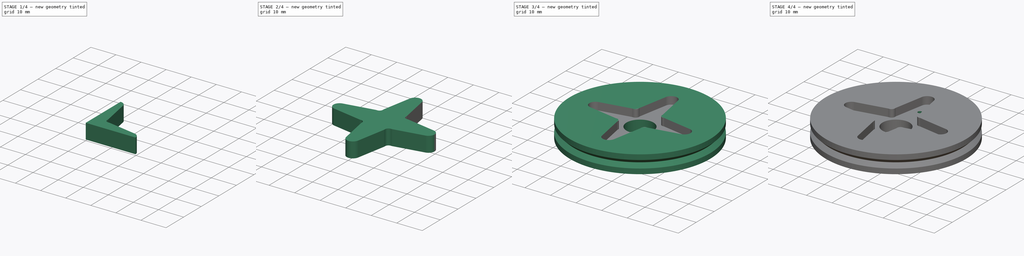
[diagram: build sequence overview — one tinted view per stage of 4, left to right]
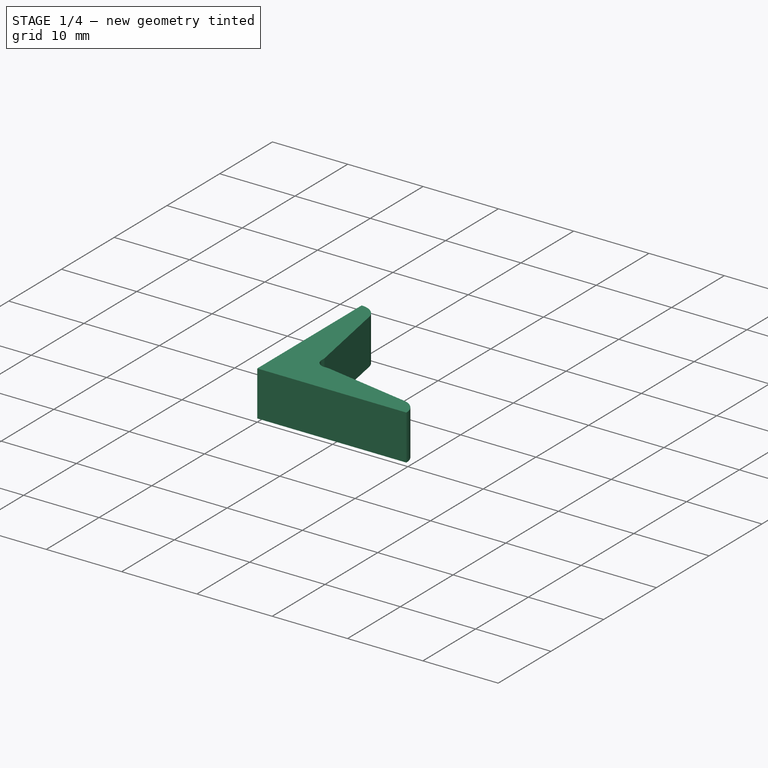
[diagram: stage 1 of 4 — iso view after this stage's code; geometry added in this stage tinted green]
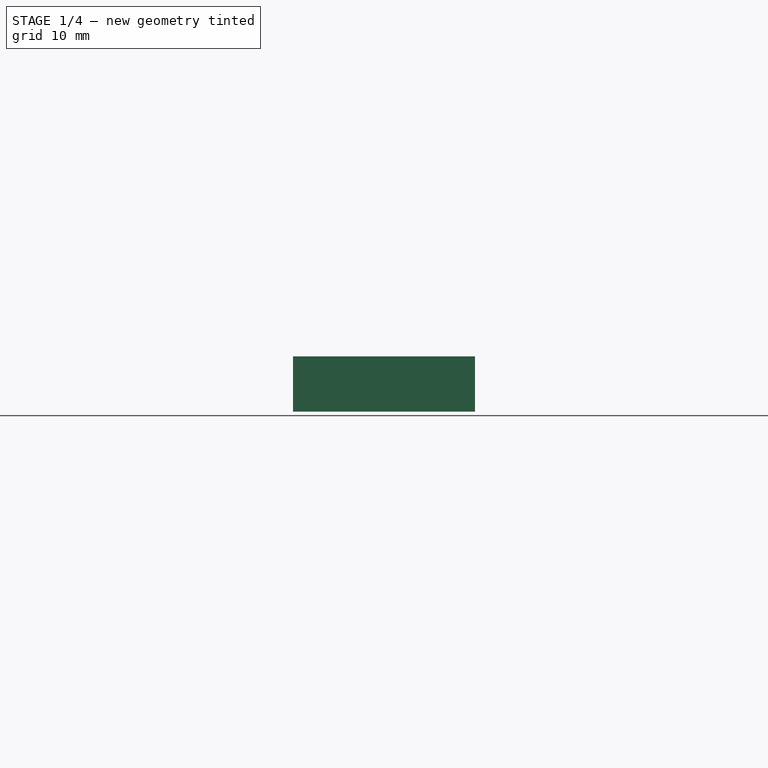
[diagram: stage 1 of 4 — front view after this stage's code; geometry added in this stage tinted green]
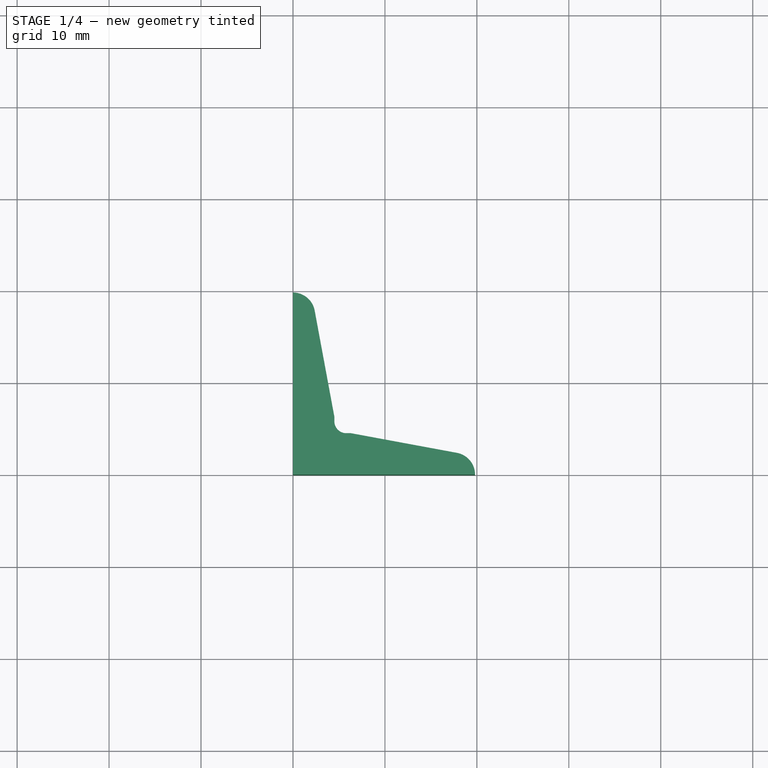
[diagram: stage 1 of 4 — top view after this stage's code; geometry added in this stage tinted green]
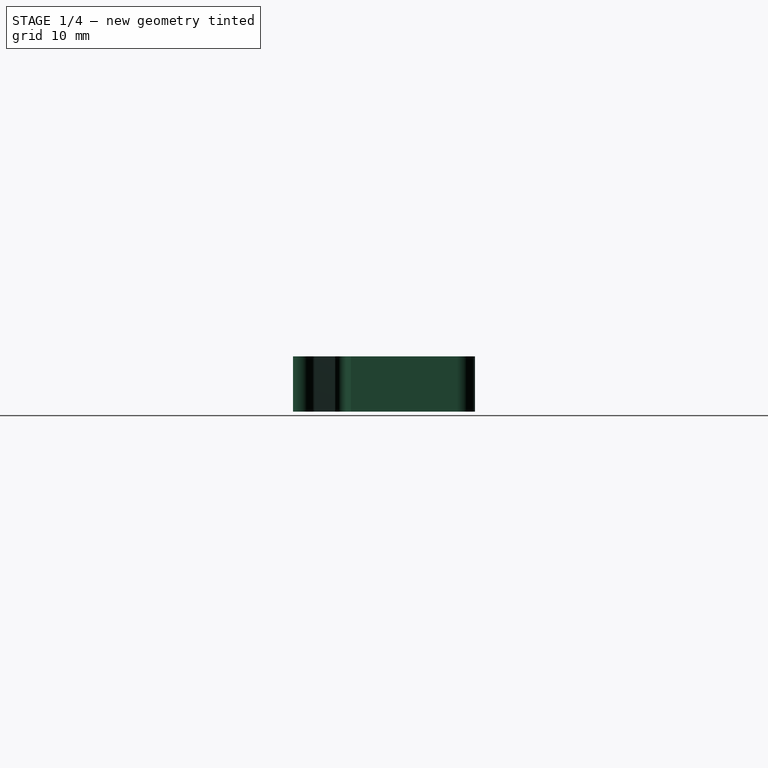
[diagram: stage 1 of 4 — right view after this stage's code; geometry added in this stage tinted green]
FCSTD DOCUMENT  (FreeCAD 0.14R3702 (Git))
Label: Miniskybot-wheel-futaba3003-4-arms-horn
License: CC-BY 3.0
LicenseURL: http://creativecommons.org/licenses/by/3.0/
objects: Sketcher::SketchObject×4, Part::Mirroring×2, Part::MultiFuse×2, PartDesign::Pocket×2, PartDesign::Revolution×1, PartDesign::Pad×1, Part::Cut×1, PartDesign::PolarPattern×1, Part::Feature×1
note: 19 computed .brp shape members not serialized (recipe doc carries the construction recipe); baked Part::Feature solids carry a one-line shape summary decoded from their .brp

FEATURE [Sketcher::SketchObject] Sketch001  label="4-arms-horn-quarter-sketch"
  sketch-geometry (12):
    g0: LineSegment StartX=-19.8 StartY=0 StartZ=0 EndX=0 EndY=0 EndZ=0
    g1: LineSegment StartX=0 StartY=0 StartZ=0 EndX=0 EndY=19.8 EndZ=0
    g2: ArcOfCircle CenterX=0 CenterY=17.4 CenterZ=0 NormalX=0 NormalY=0 NormalZ=1 Radius=2.4 StartAngle=1.5708 EndAngle=2.95818
    g3: LineSegment StartX=-2.35975 StartY=17.8377 StartZ=0 EndX=-4.5 EndY=6.3 EndZ=0
    g4: ArcOfCircle CenterX=-17.4 CenterY=0 CenterZ=0 NormalX=0 NormalY=0 NormalZ=1 Radius=2.4 StartAngle=1.75421 EndAngle=3.14159
    g5: LineSegment StartX=-17.8377 StartY=2.35974 StartZ=0 EndX=-6.3 EndY=4.5 EndZ=0
    g6: LineSegment [constr] StartX=-4.5 StartY=6.3 StartZ=0 EndX=0 EndY=6.3 EndZ=0
    g7: LineSegment [constr] StartX=-6.3 StartY=4.5 StartZ=0 EndX=-6.3 EndY=0 EndZ=0
    g8: LineSegment [constr] StartX=0 StartY=0 StartZ=0 EndX=-5.8 EndY=5.8 EndZ=0
    g9: LineSegment StartX=-4.5 StartY=6.3 StartZ=0 EndX=-4.5 EndY=5.8 EndZ=0
    g10: LineSegment StartX=-5.8 StartY=4.5 StartZ=0 EndX=-6.3 EndY=4.5 EndZ=0
    g11: ArcOfCircle CenterX=-5.8 CenterY=5.8 CenterZ=0 NormalX=0 NormalY=0 NormalZ=1 Radius=1.3 StartAngle=4.71239 EndAngle=6.28319
  constraints (37):
    c: Coincident(g0,g1)
    c: Vertical(g1)
    c: Horizontal(g0)
    c: Equal(g0,g1)
    c: Coincident(g0,g-1)
    c: Coincident(g1,g2)
    c: PointOnObject(g2,g1)
    c: Coincident(g3,g2)
    c: Tangent(g3,g2)
    c: Radius(g2) = 2.4
    c: PointOnObject(g4,g0)
    c: Coincident(g4,g0)
    c: Equal(g4,g2)
    c: Coincident(g5,g4)
    c: Tangent(g4,g5)
    c: Horizontal(g6)
    c: PointOnObject(g6,g1)
    c: Coincident(g6,g3)
    c: Vertical(g7)
    c: PointOnObject(g7,g0)
    c: Coincident(g5,g7)
    c: Equal(g7,g6)
    c: Coincident(g8,g-1)
    c: Angle(g-1,g8) = 2.35619
    c: Symmetric(g5,g3,g8)
    c: Vertical(g9)
    c: Horizontal(g10)
    c: Tangent(g9,g11)
    c: Tangent(g10,g11)
    c: Coincident(g9,g3)
    c: Coincident(g10,g5)
    c: Radius(g11) = 1.3
    c: DistanceY(g1) = 19.8
    c: DistanceX(g6) = 4.5
    c: DistanceY(g1,g6) = -13.5
    c: Symmetric(g10,g9,g8)
    c: Coincident(g8,g11)
FEATURE [PartDesign::Pad] Pad  label="4-arms-horn-quarter"
  Length = 6
  Length2 = 100
  Sketch = -> Sketch001
  Type = 0
FEATURE [Part::Mirroring] Part__Mirroring001  label="4-arms-horn-quarter (Mirror #1)"
  Base = (0,0,0)
  Normal = (1,0,0)
  Source = -> Pad
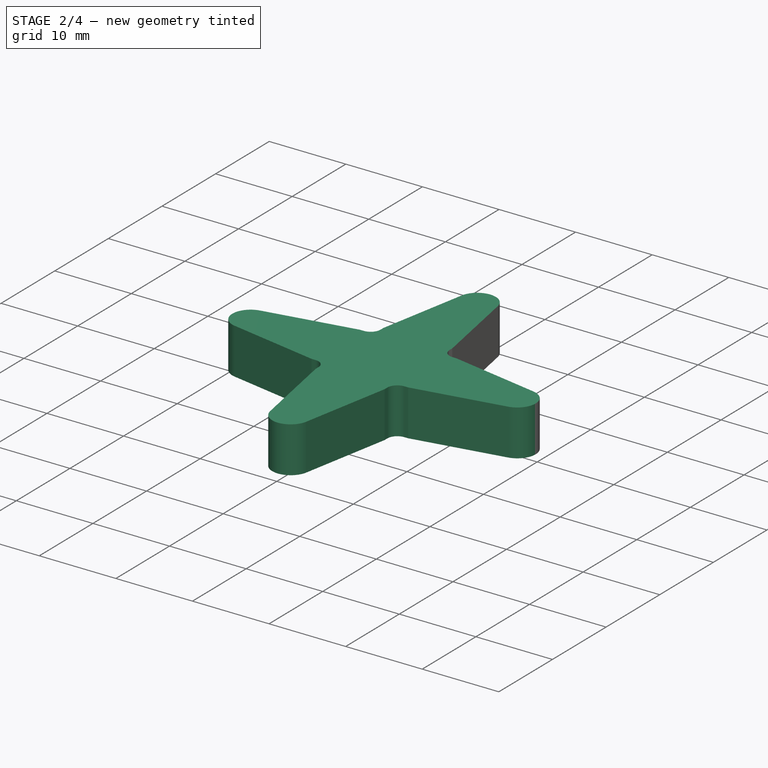
[diagram: stage 2 of 4 — iso view after this stage's code; geometry added in this stage tinted green]
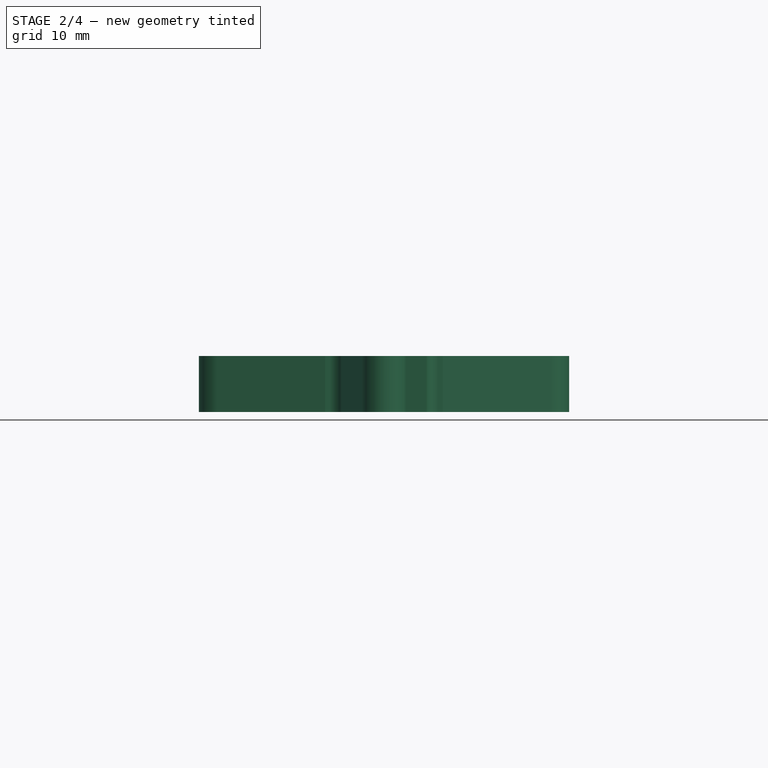
[diagram: stage 2 of 4 — front view after this stage's code; geometry added in this stage tinted green]
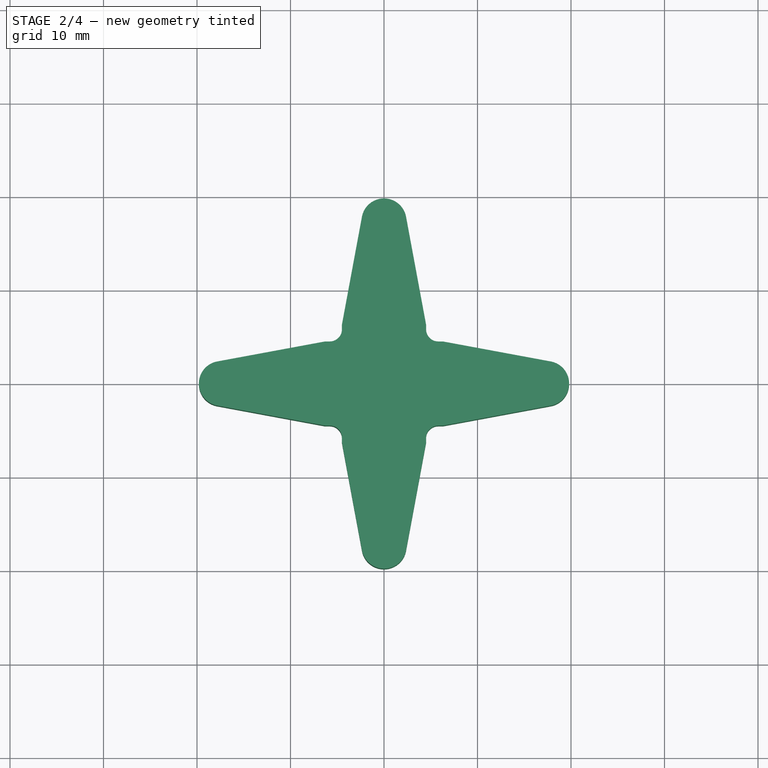
[diagram: stage 2 of 4 — top view after this stage's code; geometry added in this stage tinted green]
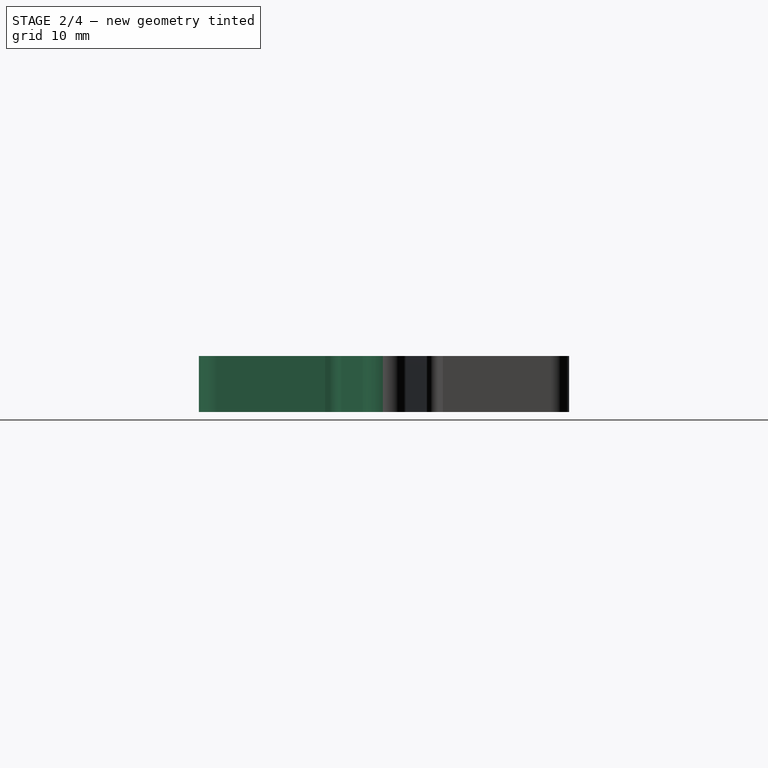
[diagram: stage 2 of 4 — right view after this stage's code; geometry added in this stage tinted green]
FEATURE [Part::MultiFuse] Fusion001  label="4-arms-horn-half"
  Shapes = -> [Pad,Part__Mirroring001]
FEATURE [Part::Mirroring] Part__Mirroring  label="4-arms-horn-half (Mirror #2)"
  Base = (0,0,0)
  Normal = (0,1,0)
  Source = -> Fusion001
FEATURE [Part::MultiFuse] Fusion  label="4-arms-horn-body"
  Placement = pos=(0,0,0.5) rot=(0,0,1;0rad)
  Shapes = -> [Part__Mirroring,Fusion001]
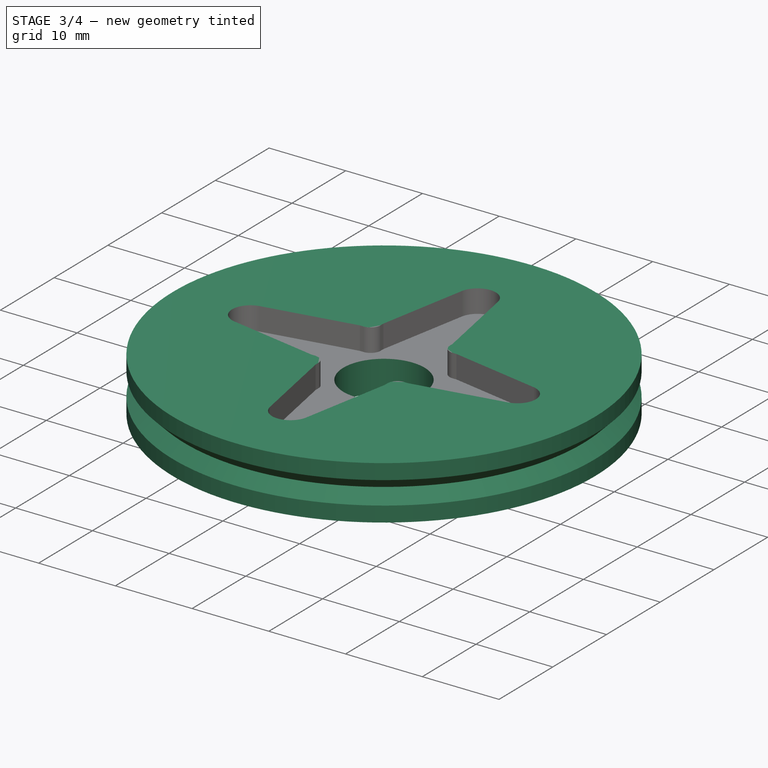
[diagram: stage 3 of 4 — iso view after this stage's code; geometry added in this stage tinted green]
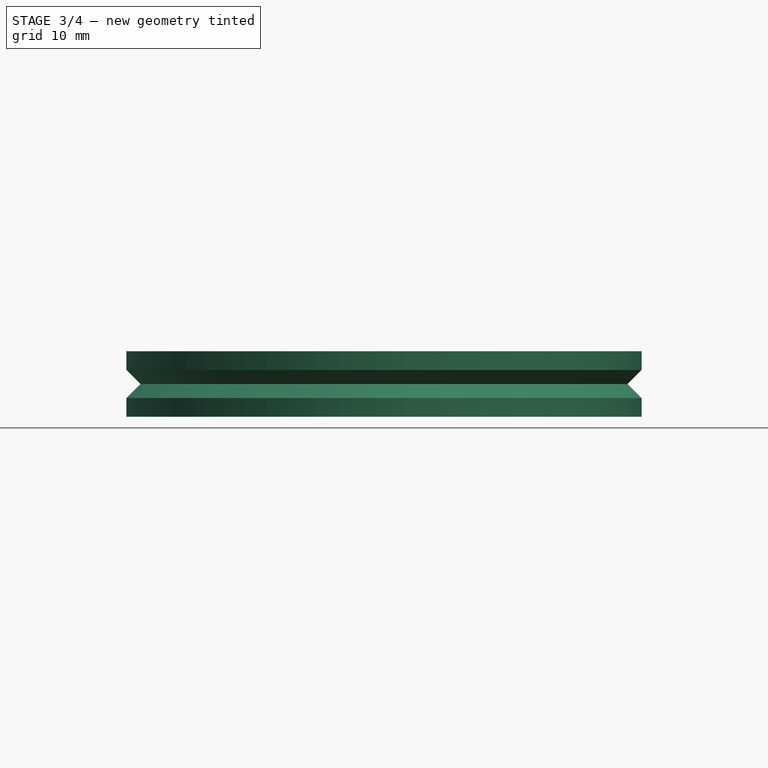
[diagram: stage 3 of 4 — front view after this stage's code; geometry added in this stage tinted green]
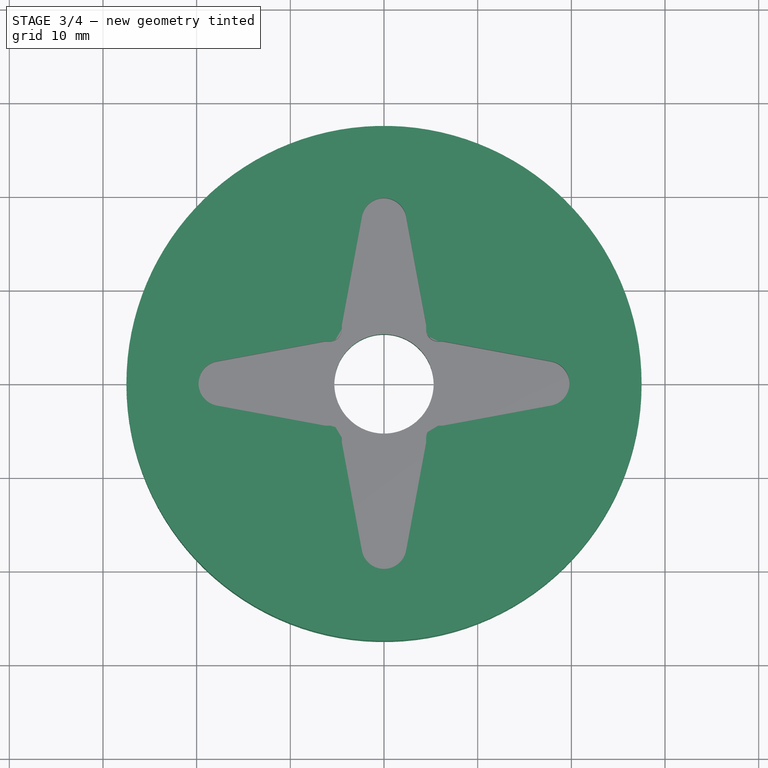
[diagram: stage 3 of 4 — top view after this stage's code; geometry added in this stage tinted green]
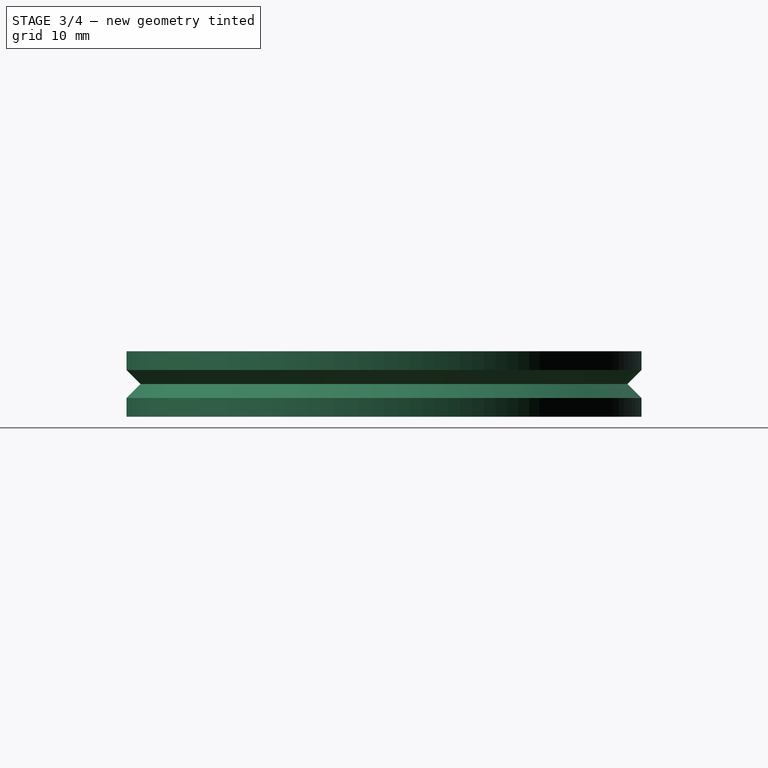
[diagram: stage 3 of 4 — right view after this stage's code; geometry added in this stage tinted green]
FEATURE [Sketcher::SketchObject] Sketch  label="wheel-generic-sketch"
  Placement = pos=(0,0,0) rot=(1,0,0;1.5708rad)
  sketch-geometry (7):
    g0: LineSegment StartX=0 StartY=-3.5 StartZ=0 EndX=0 EndY=3.5 EndZ=0
    g1: LineSegment StartX=0 StartY=3.5 StartZ=0 EndX=27.5 EndY=3.5 EndZ=0
    g2: LineSegment StartX=27.5 StartY=3.5 StartZ=0 EndX=27.5 EndY=1.5 EndZ=0
    g3: LineSegment StartX=27.5 StartY=1.5 StartZ=0 EndX=26 EndY=0 EndZ=0
    g4: LineSegment StartX=26 StartY=0 StartZ=0 EndX=27.5 EndY=-1.5 EndZ=0
    g5: LineSegment StartX=27.5 StartY=-1.5 StartZ=0 EndX=27.5 EndY=-3.5 EndZ=0
    g6: LineSegment StartX=27.5 StartY=-3.5 StartZ=0 EndX=0 EndY=-3.5 EndZ=0
  constraints (20):
    c: Vertical(g0)
    c: Coincident(g0,g1)
    c: Horizontal(g1)
    c: Coincident(g1,g2)
    c: Vertical(g2)
    c: Coincident(g2,g3)
    c: Coincident(g3,g4)
    c: Coincident(g4,g5)
    c: Coincident(g5,g6)
    c: Coincident(g6,g0)
    c: Horizontal(g6)
    c: Vertical(g5)
    c: PointOnObject(g0,g-2)
    c: Symmetric(g0,g0,g-1)
    c: PointOnObject(g3,g-1)
    c: Symmetric(g4,g2,g-1)
    c: Angle(g3,g-1) = 2.35619
    c: DistanceY(g4,g2) = 3
    c: DistanceX(g1) = 27.5
    c: DistanceY(g0) = 7
FEATURE [PartDesign::Revolution] Revolution  label="wheel-generic"
  Angle = 360
  Axis = (0,0,1)
  Base = (0,0,0)
  Placement = pos=(0,0,0) rot=(1,0,0;1.5708rad)
  ReferenceAxis = -> Sketch [V_Axis]
  Reversed = true
  Sketch = -> Sketch
FEATURE [Part::Cut] Cut  label="wheel-1"
  Base = -> Revolution
  Tool = -> Fusion
FEATURE [Sketcher::SketchObject] Sketch002  label="shaft-drill-sketch"
  Placement = pos=(0,0,0.5) rot=(0,0,1;0rad)
  Support = -> Cut [Face28]
  sketch-geometry (1):
    g0: Circle CenterX=0 CenterY=0 CenterZ=0 NormalX=0 NormalY=0 NormalZ=1 Radius=5.3
  constraints (1):
    c: Radius(g0) = 5.3
FEATURE [PartDesign::Pocket] Pocket  label="shaft-drill"
  Length = 5
  Sketch = -> Sketch002
  Type = 1
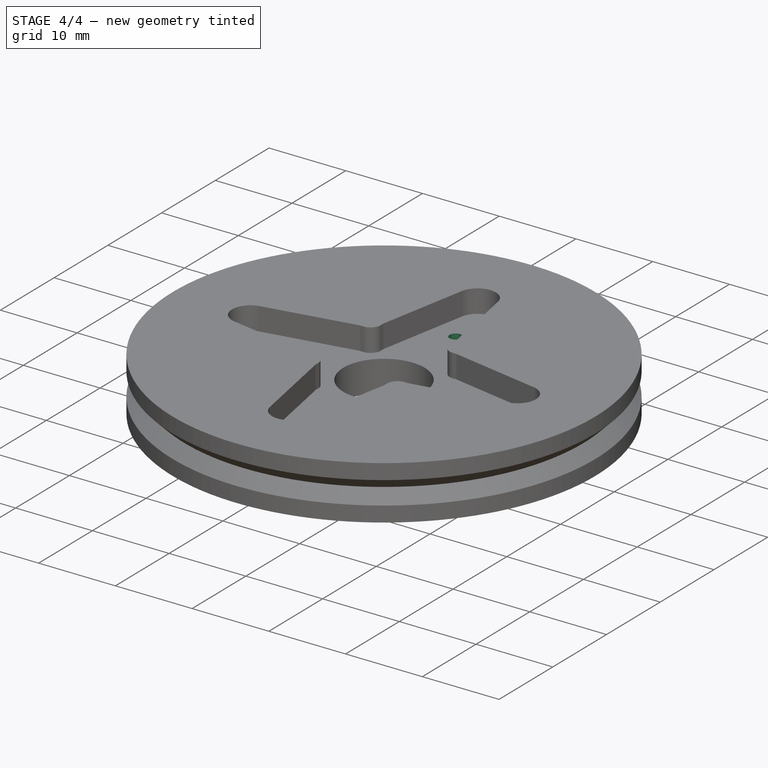
[diagram: stage 4 of 4 — iso view after this stage's code; geometry added in this stage tinted green]
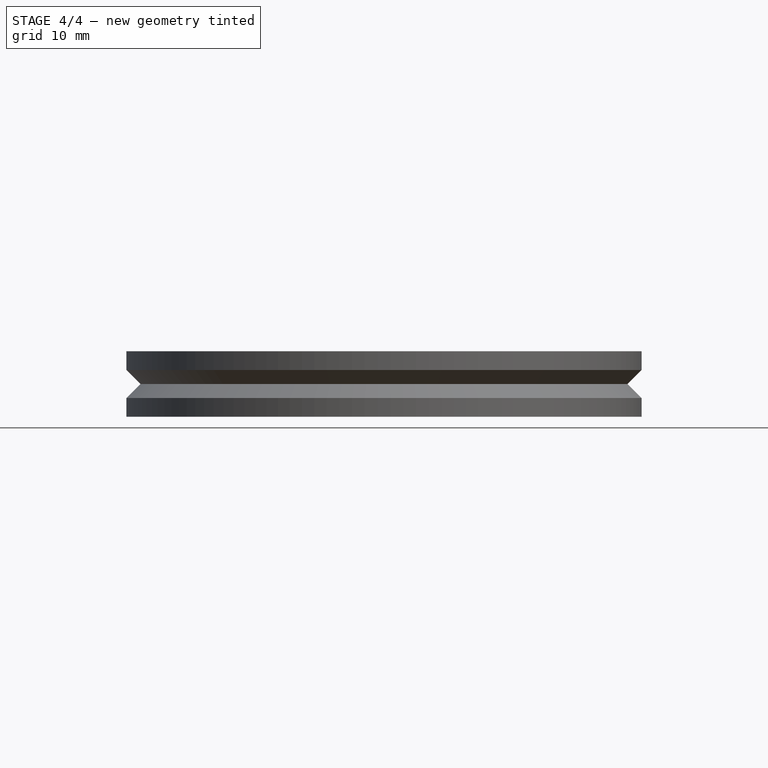
[diagram: stage 4 of 4 — front view after this stage's code; geometry added in this stage tinted green]
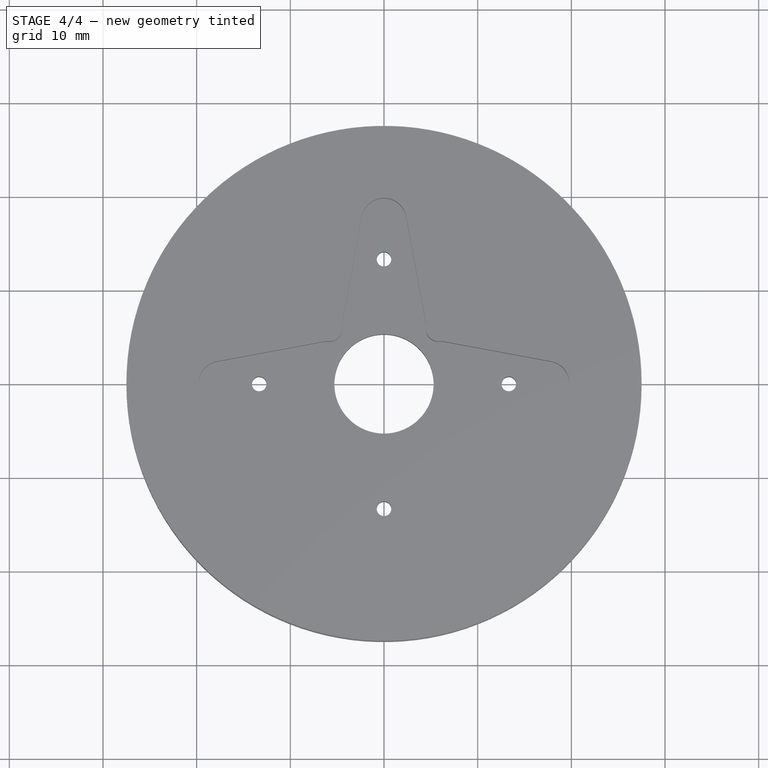
[diagram: stage 4 of 4 — top view after this stage's code; geometry added in this stage tinted green]
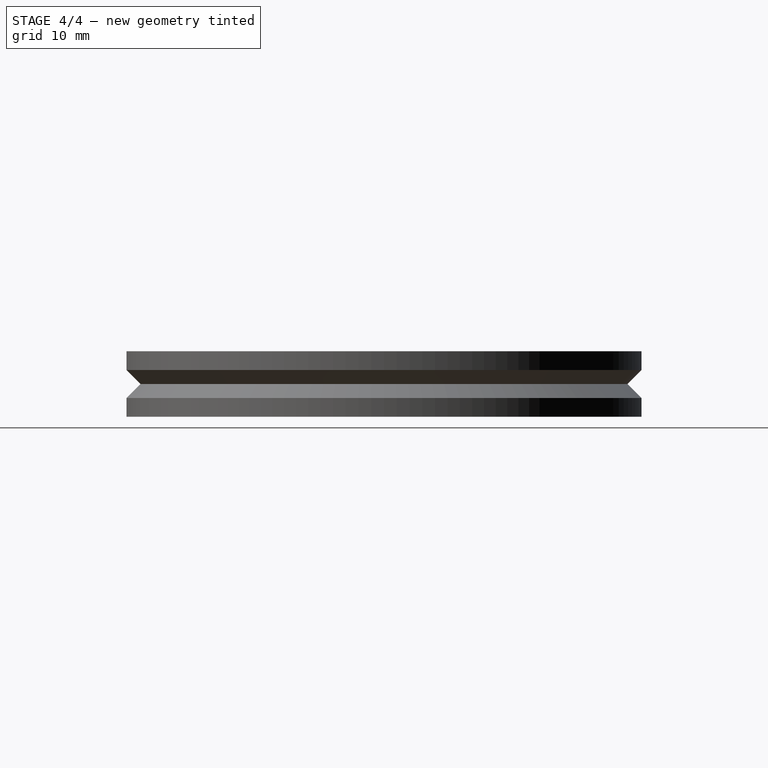
[diagram: stage 4 of 4 — right view after this stage's code; geometry added in this stage tinted green]
FEATURE [Sketcher::SketchObject] Sketch003  label="horn-drill-master-sketch"
  Placement = pos=(0,0,0.5) rot=(0,0,1;0rad)
  Support = -> Pocket [Face28]
  sketch-geometry (1):
    g0: Circle CenterX=0 CenterY=13.325 CenterZ=0 NormalX=0 NormalY=0 NormalZ=1 Radius=0.78
  constraints (3):
    c: PointOnObject(g0,g-2)
    c: DistanceY(g-1,g0) = 13.325
    c: Radius(g0) = 0.78
FEATURE [PartDesign::Pocket] Pocket001  label="horn-drill-master"
  Length = 5
  Sketch = -> Sketch003
  Type = 1
FEATURE [PartDesign::PolarPattern] PolarPattern
  Angle = 360
  Axis = -> Sketch003 [N_Axis]
  Occurrences = 4
  Originals = -> [Pocket001]
FEATURE [Part::Feature] PolarPattern001  label="Miniskybot-wheel-futaba3003-ar-arms-horn-final"
  shape: bbox 55 x 55 x 7 mm, 36 faces (baked)
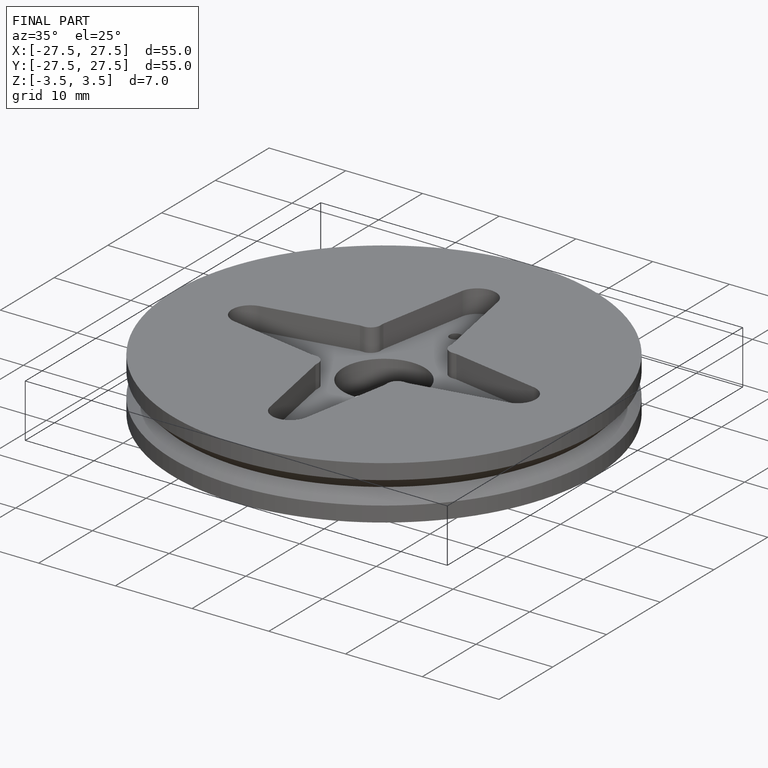
[diagram: finished part — iso view with bounding-box wireframe]
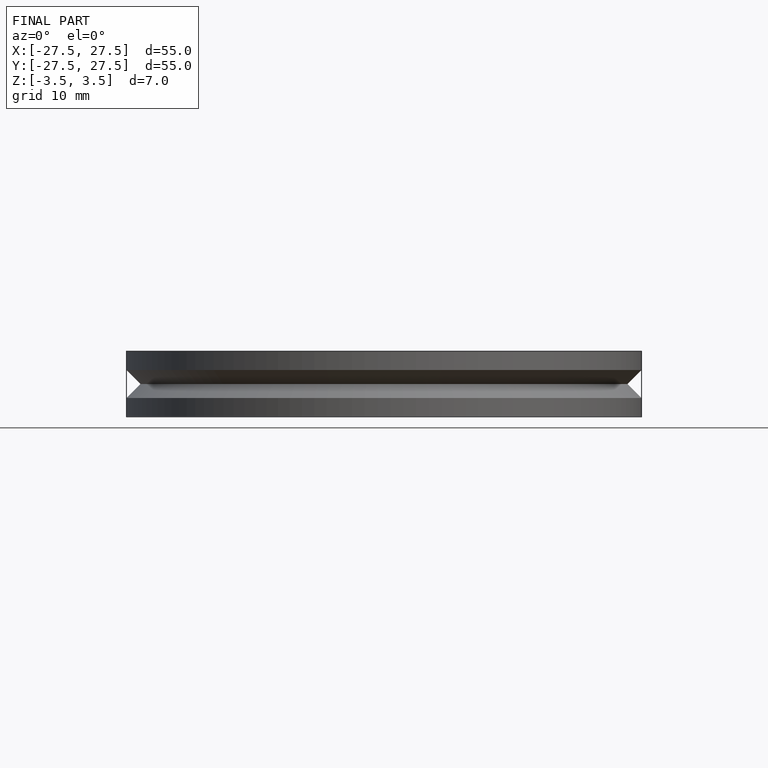
[diagram: finished part — front view with bounding-box wireframe]
